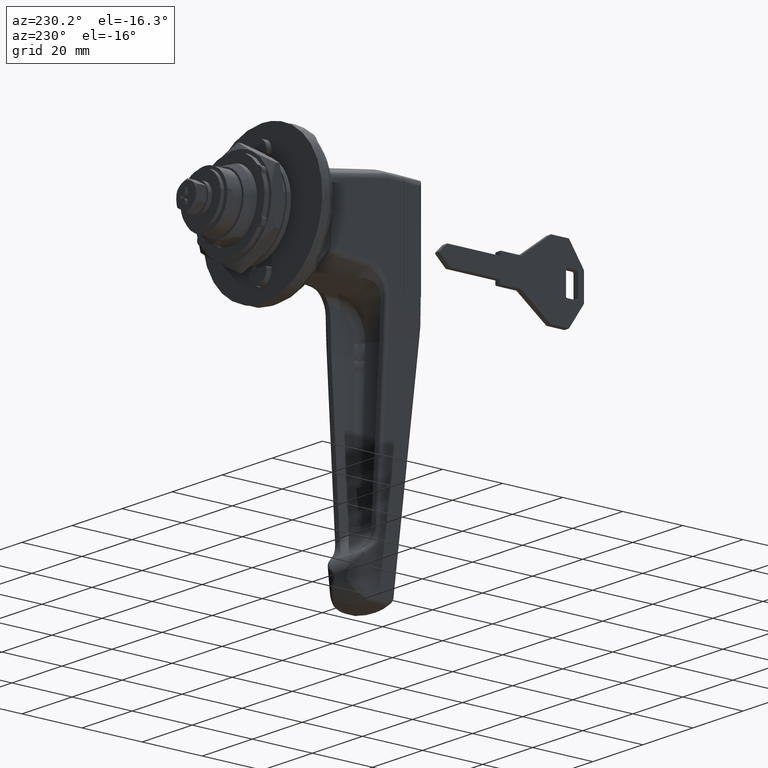
[diagram: clean part render]
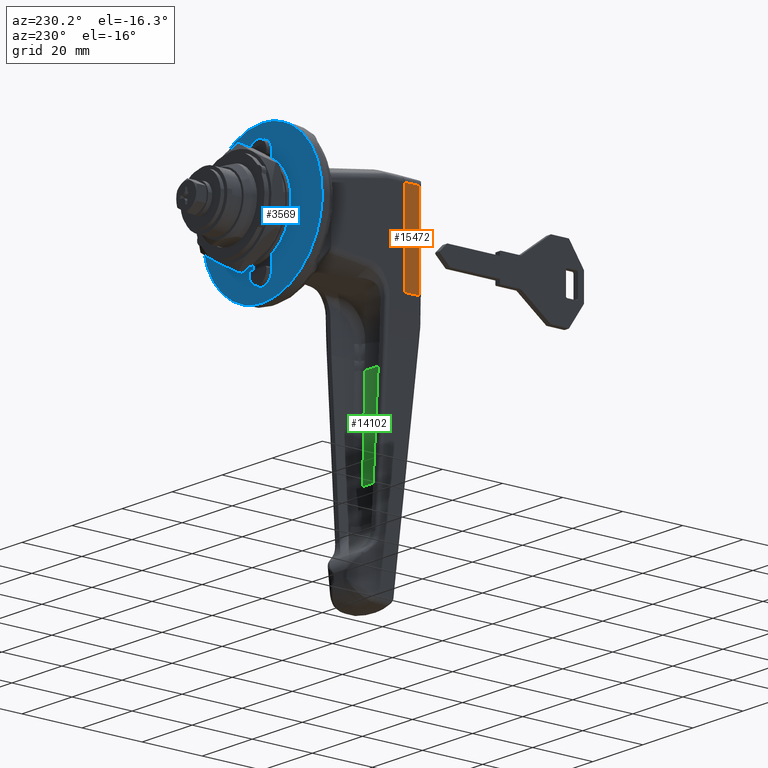
[diagram: same view with three faces highlighted in distinct colors, each labeled with its STEP entity id]
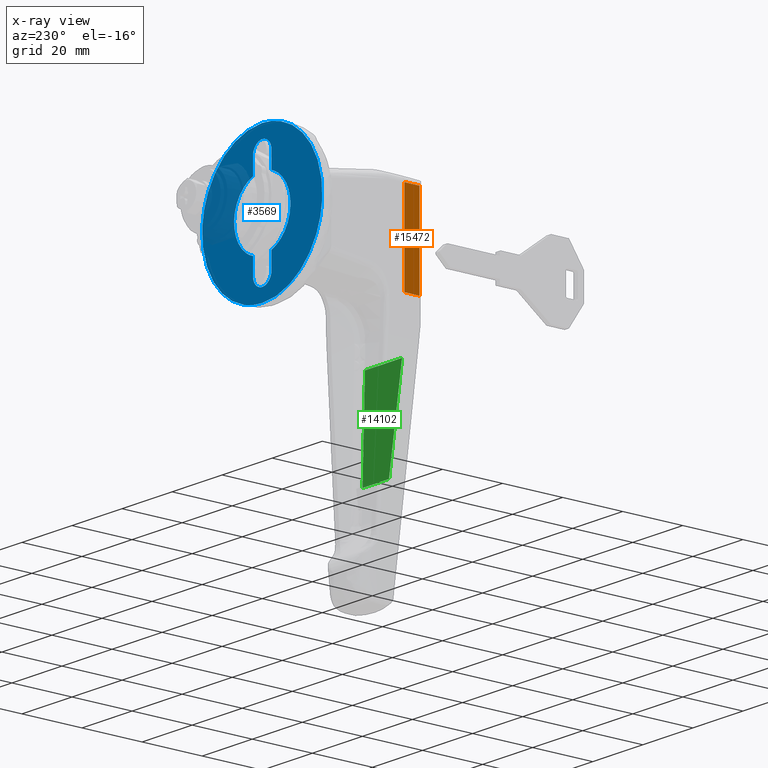
[diagram: x-ray of the same camera — body ghosted, the three highlighted faces saturated]
A machine part, auxiliary view with three faces highlighted in distinct colors.
The next image is the same camera in x-ray (body ghosted, the three faces saturated) — at least one of them is partly hidden behind the body in this view.
Their STEP definitions:

[orange] entity #15472 — the highlighted face is a freeform B-spline surface patch.
#14459=CARTESIAN_POINT('',(-41.868385151134099,12.500000000000000,-17.0));
#14460=VERTEX_POINT('',#14459);
#14490=CARTESIAN_POINT('',(-41.868385151134099,12.500000000000000,12.332615000000100));
#14491=VERTEX_POINT('',#14490);
#14515=CARTESIAN_POINT('',(-41.868385151134099,12.500000000000000,-17.0));
#14516=CARTESIAN_POINT('',(-41.868385151134099,12.500000000000000,12.332615000000100));
#14517=QUASI_UNIFORM_CURVE('',1,(#14515,#14516),.UNSPECIFIED.,.F.,.U.);
#14518=EDGE_CURVE('',#14460,#14491,#14517,.T.);
#15282=CARTESIAN_POINT('',(-36.799999999999997,12.500000000000000,-17.0));
#15283=VERTEX_POINT('',#15282);
#15289=CARTESIAN_POINT('',(-36.799999999999997,12.500000000000000,12.332615000000100));
#15290=VERTEX_POINT('',#15289);
#15291=CARTESIAN_POINT('',(-36.799999999999997,12.500000000000000,12.332615000000100));
#15292=CARTESIAN_POINT('',(-36.799999999999997,12.500000000000000,-17.0));
#15293=QUASI_UNIFORM_CURVE('',1,(#15291,#15292),.UNSPECIFIED.,.F.,.U.);
#15294=EDGE_CURVE('',#15290,#15283,#15293,.T.);
#15443=CARTESIAN_POINT('',(-41.868385151134099,12.500000000000000,-17.0));
#15444=CARTESIAN_POINT('',(-36.799999999999997,12.500000000000000,-17.0));
#15445=QUASI_UNIFORM_CURVE('',1,(#15443,#15444),.UNSPECIFIED.,.F.,.U.);
#15446=EDGE_CURVE('',#14460,#15283,#15445,.T.);
#15457=CARTESIAN_POINT('',(-42.121551206138903,12.500000000000000,13.797779062397799));
#15458=CARTESIAN_POINT('',(-42.121551206138903,12.500000000000000,-18.465164849159748));
#15459=CARTESIAN_POINT('',(-36.546833265271779,12.500000000000000,13.797779062397799));
#15460=CARTESIAN_POINT('',(-36.546833265271793,12.500000000000000,-18.465164849159748));
#15461=B_SPLINE_SURFACE_WITH_KNOTS('',1,1,((#15457,#15459),(#15458,#15460)),.UNSPECIFIED.,.F.,.F.,.U.,(2,2),(2,2),(0.0,32.262943911557556),(0.0,5.574717940867117),.UNSPECIFIED.);
#15462=ORIENTED_EDGE('',*,*,#15446,.F.);
#15463=ORIENTED_EDGE('',*,*,#14518,.T.);
#15464=CARTESIAN_POINT('',(-41.868385151134099,12.500000000000000,12.332615000000100));
#15465=CARTESIAN_POINT('',(-36.799999999999997,12.500000000000000,12.332615000000100));
#15466=QUASI_UNIFORM_CURVE('',1,(#15464,#15465),.UNSPECIFIED.,.F.,.U.);
#15467=EDGE_CURVE('',#14491,#15290,#15466,.T.);
#15468=ORIENTED_EDGE('',*,*,#15467,.T.);
#15469=ORIENTED_EDGE('',*,*,#15294,.T.);
#15470=EDGE_LOOP('',(#15462,#15463,#15468,#15469));
#15471=FACE_OUTER_BOUND('',#15470,.T.);
#15472=ADVANCED_FACE('',(#15471),#15461,.F.);

[blue] entity #3569 — the highlighted face is a freeform B-spline surface patch.
#3203=CARTESIAN_POINT('',(-2.255141E-017,-23.926017600802730,1.882994096402696));
#3204=VERTEX_POINT('',#3203);
#3210=CARTESIAN_POINT('',(0.0,0.000000313432878,24.0));
#3211=VERTEX_POINT('',#3210);
#3212=CARTESIAN_POINT('',(0.0,0.000000313432878,24.0));
#3213=CARTESIAN_POINT('',(0.0,-22.185393996174241,23.999999999999996));
#3214=CARTESIAN_POINT('',(-2.255141E-017,-23.926017600802730,1.882994096402695));
#3222=(BOUNDED_CURVE()B_SPLINE_CURVE(2,(#3212,#3213,#3214),.UNSPECIFIED.,.F.,.U.)B_SPLINE_CURVE_WITH_KNOTS((3,3),(0.0,0.236331474027944),.UNSPECIFIED.)CURVE()GEOMETRIC_REPRESENTATION_ITEM()RATIONAL_B_SPLINE_CURVE((1.0,0.723120455460111,0.969723718034603))REPRESENTATION_ITEM(''));
#3223=EDGE_CURVE('',#3211,#3204,#3222,.T.);
#3225=CARTESIAN_POINT('',(-2.255141E-017,23.926018227668489,-1.882994096402701));
#3226=VERTEX_POINT('',#3225);
#3227=CARTESIAN_POINT('',(-2.255141E-017,23.926018227668486,-1.882994096402701));
#3228=CARTESIAN_POINT('',(0.0,24.000000313432885,-0.942950411497736));
#3229=CARTESIAN_POINT('',(0.0,24.000000313432881,1.919159E-023));
#3230=CARTESIAN_POINT('',(0.0,24.000000313432871,23.999999999999996));
#3231=CARTESIAN_POINT('',(0.0,0.000000313432878,24.0));
#3239=(BOUNDED_CURVE()B_SPLINE_CURVE(2,(#3227,#3228,#3229,#3230,#3231),.UNSPECIFIED.,.F.,.U.)B_SPLINE_CURVE_WITH_KNOTS((3,2,3),(0.736331474027944,0.750000000000000,1.0),.UNSPECIFIED.)CURVE()GEOMETRIC_REPRESENTATION_ITEM()RATIONAL_B_SPLINE_CURVE((0.969723718034603,0.983986325726437,1.0,0.707106781186548,1.0))REPRESENTATION_ITEM(''));
#3240=EDGE_CURVE('',#3226,#3211,#3239,.T.);
#3316=CARTESIAN_POINT('',(0.0,0.000000313432878,-24.0));
#3317=VERTEX_POINT('',#3316);
#3318=CARTESIAN_POINT('',(0.0,0.000000313432878,-24.0));
#3319=CARTESIAN_POINT('',(0.0,22.185394623039983,-23.999999999999993));
#3320=CARTESIAN_POINT('',(-2.255141E-017,23.926018227668486,-1.882994096402701));
#3328=(BOUNDED_CURVE()B_SPLINE_CURVE(2,(#3318,#3319,#3320),.UNSPECIFIED.,.F.,.U.)B_SPLINE_CURVE_WITH_KNOTS((3,3),(0.500000000000000,0.736331474027944),.UNSPECIFIED.)CURVE()GEOMETRIC_REPRESENTATION_ITEM()RATIONAL_B_SPLINE_CURVE((1.0,0.723120455460111,0.969723718034603))REPRESENTATION_ITEM(''));
#3329=EDGE_CURVE('',#3317,#3226,#3328,.T.);
#3331=CARTESIAN_POINT('',(-2.255141E-017,-23.926017600802730,1.882994096402695));
#3332=CARTESIAN_POINT('',(0.0,-23.999999686567119,0.942950411497734));
#3333=CARTESIAN_POINT('',(0.0,-23.999999686567119,1.919159E-023));
#3334=CARTESIAN_POINT('',(0.0,-23.999999686567126,-23.999999999999996));
#3335=CARTESIAN_POINT('',(0.0,0.000000313432878,-24.0));
#3343=(BOUNDED_CURVE()B_SPLINE_CURVE(2,(#3331,#3332,#3333,#3334,#3335),.UNSPECIFIED.,.F.,.U.)B_SPLINE_CURVE_WITH_KNOTS((3,2,3),(0.236331474027944,0.250000000000000,0.500000000000000),.UNSPECIFIED.)CURVE()GEOMETRIC_REPRESENTATION_ITEM()RATIONAL_B_SPLINE_CURVE((0.969723718034603,0.983986325726437,1.0,0.707106781186548,1.0))REPRESENTATION_ITEM(''));
#3344=EDGE_CURVE('',#3204,#3317,#3343,.T.);
#3460=CARTESIAN_POINT('',(0.0,-26.390274202600960,26.397599906966690));
#3461=CARTESIAN_POINT('',(0.0,26.390275687773599,26.397599906966690));
#3462=CARTESIAN_POINT('',(0.0,-26.390274202600960,-26.397601194427011));
#3463=CARTESIAN_POINT('',(0.0,26.390275687773599,-26.397601194427011));
#3464=B_SPLINE_SURFACE_WITH_KNOTS('',1,1,((#3460,#3462),(#3461,#3463)),.UNSPECIFIED.,.F.,.F.,.U.,(2,2),(2,2),(0.0,52.780549890374573),(0.0,52.795201101393701),.UNSPECIFIED.);
#3465=ORIENTED_EDGE('',*,*,#3223,.T.);
#3466=ORIENTED_EDGE('',*,*,#3344,.T.);
#3467=ORIENTED_EDGE('',*,*,#3329,.T.);
#3468=ORIENTED_EDGE('',*,*,#3240,.T.);
#3469=EDGE_LOOP('',(#3465,#3466,#3467,#3468));
#3470=FACE_OUTER_BOUND('',#3469,.T.);
#3471=CARTESIAN_POINT('',(0.0,-3.700000000000000,10.624146915427920));
#3472=VERTEX_POINT('',#3471);
#3473=CARTESIAN_POINT('',(0.0,-3.700000000000000,-10.624146915427920));
#3474=VERTEX_POINT('',#3473);
#3475=CARTESIAN_POINT('',(0.0,-3.700000000000004,10.624146915427920));
#3476=CARTESIAN_POINT('',(0.0,-11.249999686567117,7.994759216905932));
#3477=CARTESIAN_POINT('',(0.0,-11.249999686567120,1.919159E-023));
#3478=CARTESIAN_POINT('',(0.0,-11.249999686567117,-7.994759216905935));
#3479=CARTESIAN_POINT('',(0.0,-3.700000000000001,-10.624146915427920));
#3487=(BOUNDED_CURVE()B_SPLINE_CURVE(2,(#3475,#3476,#3477,#3478,#3479),.UNSPECIFIED.,.F.,.U.)B_SPLINE_CURVE_WITH_KNOTS((3,2,3),(0.0,0.500000000000000,1.0),.UNSPECIFIED.)CURVE()GEOMETRIC_REPRESENTATION_ITEM()RATIONAL_B_SPLINE_CURVE((1.0,0.815134625920648,1.0,0.815134625920648,1.0))REPRESENTATION_ITEM(''));
#3488=EDGE_CURVE('',#3472,#3474,#3487,.T.);
#3489=ORIENTED_EDGE('',*,*,#3488,.F.);
#3490=CARTESIAN_POINT('',(0.0,-3.700000000000000,16.0));
#3491=VERTEX_POINT('',#3490);
#3492=CARTESIAN_POINT('',(0.0,-3.700000000000000,16.0));
#3493=CARTESIAN_POINT('',(0.0,-3.700000000000000,10.624146915427920));
#3494=QUASI_UNIFORM_CURVE('',1,(#3492,#3493),.UNSPECIFIED.,.F.,.U.);
#3495=EDGE_CURVE('',#3491,#3472,#3494,.T.);
#3496=ORIENTED_EDGE('',*,*,#3495,.F.);
#3497=CARTESIAN_POINT('',(0.0,3.700000000000000,16.0));
#3498=VERTEX_POINT('',#3497);
#3499=CARTESIAN_POINT('',(0.0,3.699999999999999,16.0));
#3500=CARTESIAN_POINT('',(0.0,3.699999999999999,19.700000000000006));
#3501=CARTESIAN_POINT('',(0.0,-9.619438E-016,19.699999999999999));
#3502=CARTESIAN_POINT('',(0.0,-3.700000000000001,19.700000000000006));
#3503=CARTESIAN_POINT('',(0.0,-3.700000000000001,16.0));
#3511=(BOUNDED_CURVE()B_SPLINE_CURVE(2,(#3499,#3500,#3501,#3502,#3503),.UNSPECIFIED.,.F.,.U.)B_SPLINE_CURVE_WITH_KNOTS((3,2,3),(0.0,0.500000000000000,1.0),.UNSPECIFIED.)CURVE()GEOMETRIC_REPRESENTATION_ITEM()RATIONAL_B_SPLINE_CURVE((1.0,0.707106781186548,1.0,0.707106781186548,1.0))REPRESENTATION_ITEM(''));
#3512=EDGE_CURVE('',#3498,#3491,#3511,.T.);
#3513=ORIENTED_EDGE('',*,*,#3512,.F.);
#3514=CARTESIAN_POINT('',(0.0,3.700000000000000,10.624146915427920));
#3515=VERTEX_POINT('',#3514);
#3516=CARTESIAN_POINT('',(0.0,3.700000000000000,10.624146915427920));
#3517=CARTESIAN_POINT('',(0.0,3.700000000000000,16.0));
#3518=QUASI_UNIFORM_CURVE('',1,(#3516,#3517),.UNSPECIFIED.,.F.,.U.);
#3519=EDGE_CURVE('',#3515,#3498,#3518,.T.);
#3520=ORIENTED_EDGE('',*,*,#3519,.F.);
#3521=CARTESIAN_POINT('',(0.0,3.700000000000000,-10.624146915427920));
#3522=VERTEX_POINT('',#3521);
#3523=CARTESIAN_POINT('',(0.0,3.699999999999998,-10.624146915427920));
#3524=CARTESIAN_POINT('',(0.0,11.249999686567120,-7.994759216905933));
#3525=CARTESIAN_POINT('',(0.0,11.249999686567120,-1.919159E-023));
#3526=CARTESIAN_POINT('',(0.0,11.249999686567120,7.994759216905930));
#3527=CARTESIAN_POINT('',(0.0,3.700000000000007,10.624146915427920));
#3535=(BOUNDED_CURVE()B_SPLINE_CURVE(2,(#3523,#3524,#3525,#3526,#3527),.UNSPECIFIED.,.F.,.U.)B_SPLINE_CURVE_WITH_KNOTS((3,2,3),(0.0,0.500000000000000,1.0),.UNSPECIFIED.)CURVE()GEOMETRIC_REPRESENTATION_ITEM()RATIONAL_B_SPLINE_CURVE((1.0,0.815134625920648,1.0,0.815134625920648,1.0))REPRESENTATION_ITEM(''));
#3536=EDGE_CURVE('',#3522,#3515,#3535,.T.);
#3537=ORIENTED_EDGE('',*,*,#3536,.F.);
#3538=CARTESIAN_POINT('',(0.0,3.700000000000000,-16.0));
#3539=VERTEX_POINT('',#3538);
#3540=CARTESIAN_POINT('',(0.0,3.700000000000000,-16.0));
#3541=CARTESIAN_POINT('',(0.0,3.700000000000000,-10.624146915427920));
#3542=QUASI_UNIFORM_CURVE('',1,(#3540,#3541),.UNSPECIFIED.,.F.,.U.);
#3543=EDGE_CURVE('',#3539,#3522,#3542,.T.);
#3544=ORIENTED_EDGE('',*,*,#3543,.F.);
#3545=CARTESIAN_POINT('',(0.0,-3.700000000000000,-16.0));
#3546=VERTEX_POINT('',#3545);
#3547=CARTESIAN_POINT('',(0.0,-3.699999999999999,-16.0));
#3548=CARTESIAN_POINT('',(0.0,-3.699999999999999,-19.700000000000006));
#3549=CARTESIAN_POINT('',(0.0,9.619438E-016,-19.699999999999999));
#3550=CARTESIAN_POINT('',(0.0,3.700000000000001,-19.700000000000006));
#3551=CARTESIAN_POINT('',(0.0,3.700000000000001,-16.0));
#3559=(BOUNDED_CURVE()B_SPLINE_CURVE(2,(#3547,#3548,#3549,#3550,#3551),.UNSPECIFIED.,.F.,.U.)B_SPLINE_CURVE_WITH_KNOTS((3,2,3),(0.0,0.500000000000000,1.0),.UNSPECIFIED.)CURVE()GEOMETRIC_REPRESENTATION_ITEM()RATIONAL_B_SPLINE_CURVE((1.0,0.707106781186548,1.0,0.707106781186548,1.0))REPRESENTATION_ITEM(''));
#3560=EDGE_CURVE('',#3546,#3539,#3559,.T.);
#3561=ORIENTED_EDGE('',*,*,#3560,.F.);
#3562=CARTESIAN_POINT('',(0.0,-3.700000000000000,-10.624146915427920));
#3563=CARTESIAN_POINT('',(0.0,-3.700000000000000,-16.0));
#3564=QUASI_UNIFORM_CURVE('',1,(#3562,#3563),.UNSPECIFIED.,.F.,.U.);
#3565=EDGE_CURVE('',#3474,#3546,#3564,.T.);
#3566=ORIENTED_EDGE('',*,*,#3565,.F.);
#3567=EDGE_LOOP('',(#3489,#3496,#3513,#3520,#3537,#3544,#3561,#3566));
#3568=FACE_BOUND('',#3567,.T.);
#3569=ADVANCED_FACE('',(#3470,#3568),#3464,.F.);

[green] entity #14102 — the highlighted face is a freeform B-spline surface patch.
#11578=CARTESIAN_POINT('',(-37.789886099424102,-5.289346666034010,-65.0));
#11579=VERTEX_POINT('',#11578);
#11580=CARTESIAN_POINT('',(-37.789886099424102,5.289346666033980,-65.0));
#11581=VERTEX_POINT('',#11580);
#11582=CARTESIAN_POINT('',(-37.789886099424102,-5.289346666034010,-65.0));
#11583=CARTESIAN_POINT('',(-37.789886099424102,5.289346666033980,-65.0));
#11584=QUASI_UNIFORM_CURVE('',1,(#11582,#11583),.UNSPECIFIED.,.F.,.U.);
#11585=EDGE_CURVE('',#11579,#11581,#11584,.T.);
#12254=CARTESIAN_POINT('',(-40.372847546967002,7.400885188629251,-32.706838555260312));
#12255=VERTEX_POINT('',#12254);
#12778=CARTESIAN_POINT('',(-40.372847546967002,-7.400885188629251,-32.706838555260312));
#12779=VERTEX_POINT('',#12778);
#13285=CARTESIAN_POINT('',(-40.372847546967002,7.400885188629251,-32.706838555260312));
#13286=CARTESIAN_POINT('',(-40.372847546967002,-7.400885188629251,-32.706838555260312));
#13287=QUASI_UNIFORM_CURVE('',1,(#13285,#13286),.UNSPECIFIED.,.F.,.U.);
#13288=EDGE_CURVE('',#12255,#12779,#13287,.T.);
#14048=CARTESIAN_POINT('',(-40.372847546967002,7.400885188629251,-32.706838555260312));
#14049=CARTESIAN_POINT('',(-37.789886099424102,5.289346666033980,-65.0));
#14050=QUASI_UNIFORM_CURVE('',1,(#14048,#14049),.UNSPECIFIED.,.F.,.U.);
#14051=EDGE_CURVE('',#12255,#11581,#14050,.T.);
#14075=CARTESIAN_POINT('',(-37.789886099424102,-5.289346666034010,-65.0));
#14076=CARTESIAN_POINT('',(-40.372847546967002,-7.400885188629251,-32.706838555260312));
#14077=QUASI_UNIFORM_CURVE('',1,(#14075,#14076),.UNSPECIFIED.,.F.,.U.);
#14078=EDGE_CURVE('',#11579,#12779,#14077,.T.);
#14091=CARTESIAN_POINT('',(-40.501866635994453,-8.140233590284611,-31.093793081670309));
#14092=CARTESIAN_POINT('',(-37.660867102770553,-8.140233590284611,-66.613044318696552));
#14093=CARTESIAN_POINT('',(-40.501866635994453,8.140233987299029,-31.093793081670309));
#14094=CARTESIAN_POINT('',(-37.660867102770553,8.140233987299029,-66.613044318696552));
#14095=B_SPLINE_SURFACE_WITH_KNOTS('',1,1,((#14091,#14093),(#14092,#14094)),.UNSPECIFIED.,.F.,.F.,.U.,(2,2),(2,2),(0.0,35.632688458587687),(0.0,16.280467577583639),.UNSPECIFIED.);
#14096=ORIENTED_EDGE('',*,*,#14078,.F.);
#14097=ORIENTED_EDGE('',*,*,#11585,.T.);
#14098=ORIENTED_EDGE('',*,*,#14051,.F.);
#14099=ORIENTED_EDGE('',*,*,#13288,.T.);
#14100=EDGE_LOOP('',(#14096,#14097,#14098,#14099));
#14101=FACE_OUTER_BOUND('',#14100,.T.);
#14102=ADVANCED_FACE('',(#14101),#14095,.T.);